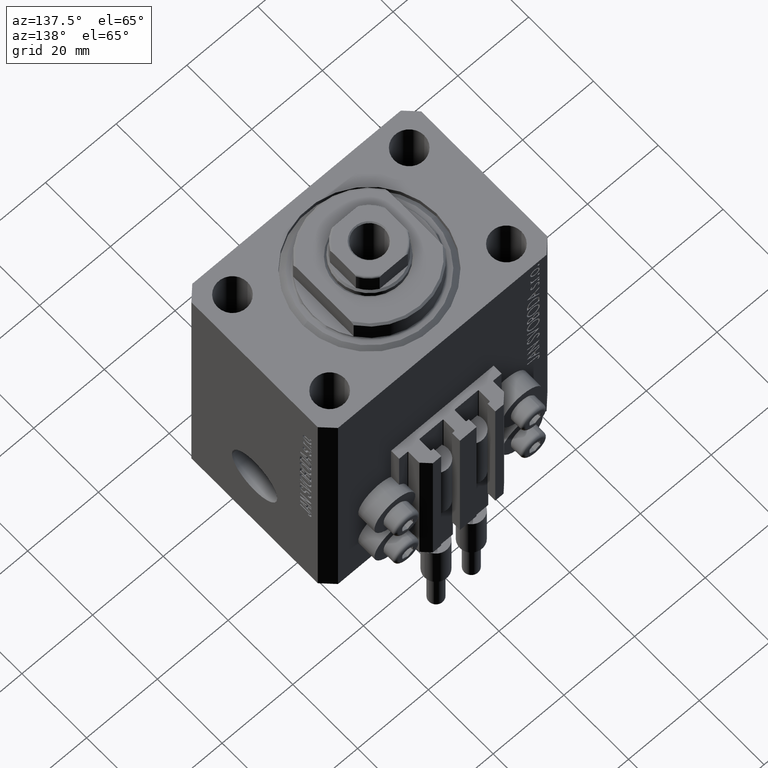
[diagram: clean part render]
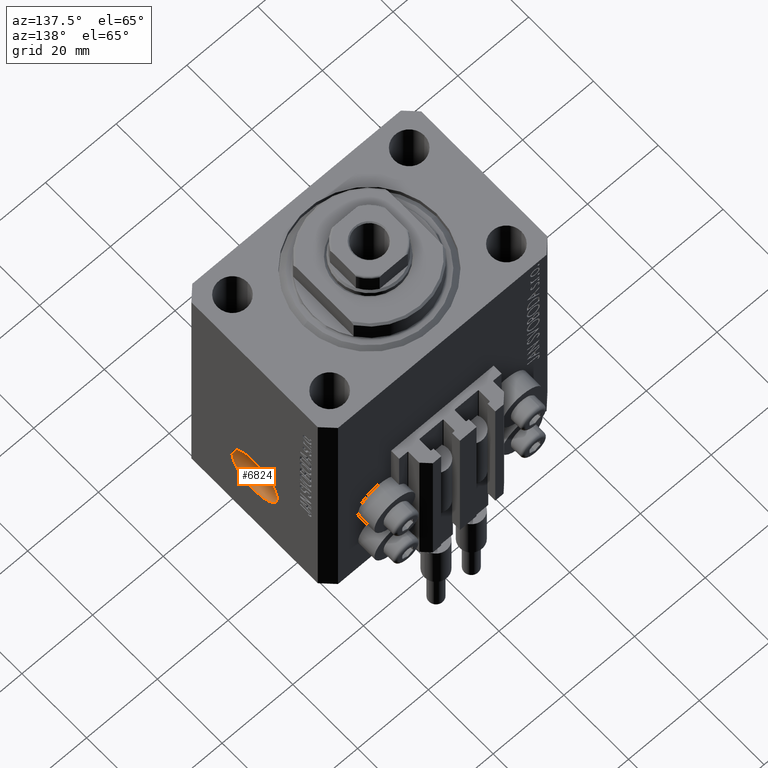
[diagram: same view with one face highlighted and labeled with its STEP entity id]
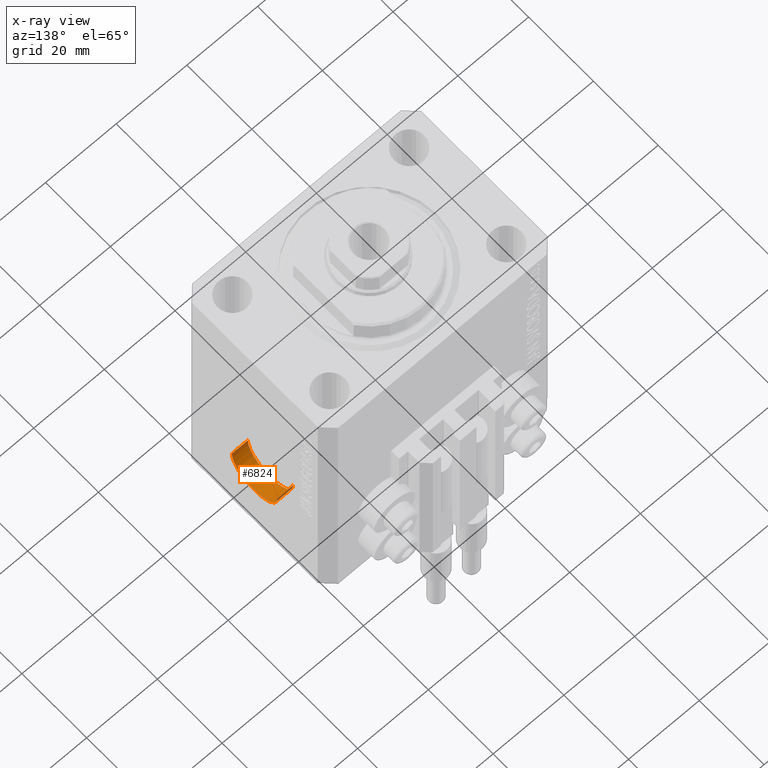
[diagram: x-ray of the same camera — body ghosted, the highlighted face saturated]
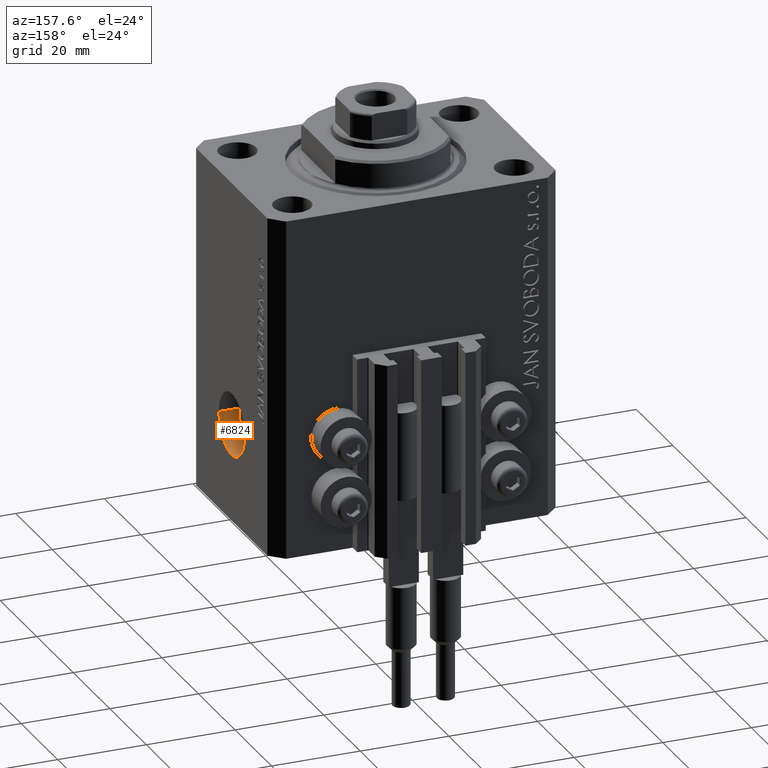
[diagram: same view with one face highlighted and labeled with its STEP entity id]
A machine part, auxiliary view. The second image highlights one B-rep face of the part: STEP entity #6824.
The next image is the same camera in x-ray: the body ghosted, the highlighted face saturated — about 0% of this face is hidden behind the body in this view.
A second angle (auxiliary view) of the same face is appended — the face is thin or edge-on in the first view.
In plain terms, the highlighted cylindrical surface (edge-blend (fillet) strip) has radius 7 mm, axis along (1, -0, 0).
Its self-contained STEP definition (entity closure, byte-faithful):
#1303 = LINE ( 'NONE', #16196, #12976 ) ;
#3651 = ORIENTED_EDGE ( 'NONE', *, *, #30468, .T. ) ;
#6824 = ADVANCED_FACE ( 'NONE', ( #17869 ), #9802, .F. ) ;
#8978 = VERTEX_POINT ( 'NONE', #17632 ) ;
#9182 = ORIENTED_EDGE ( 'NONE', *, *, #22880, .F. ) ;
#9327 = DIRECTION ( 'NONE',  ( 1.000000000000000000, -1.334402673828349134E-14, 0.000000000000000000 ) ) ;
#9334 = CIRCLE ( 'NONE', #35081, 7.000000000000000000 ) ;
#9430 = CARTESIAN_POINT ( 'NONE',  ( 27.99999999999686651, 7.000000000000042633, -55.00000000000000000 ) ) ;
#9802 = CYLINDRICAL_SURFACE ( 'NONE', #30935, 7.000000000000000000 ) ;
#10062 = CARTESIAN_POINT ( 'NONE',  ( 27.99999999999677414, 4.270088556253899177E-14, -55.00000000000000000 ) ) ;
#12976 = VECTOR ( 'NONE', #38403, 1000.000000000000000 ) ;
#14023 = ORIENTED_EDGE ( 'NONE', *, *, #38986, .F. ) ;
#16196 = CARTESIAN_POINT ( 'NONE',  ( 27.99999999999668177, -6.999999999999957367, -55.00000000000000000 ) ) ;
#17632 = CARTESIAN_POINT ( 'NONE',  ( 32.49999999999668177, -7.000000000000018652, -55.00000000000000000 ) ) ;
#17869 = FACE_OUTER_BOUND ( 'NONE', #40268, .T. ) ;
#18051 = ORIENTED_EDGE ( 'NONE', *, *, #30378, .T. ) ;
#21565 = AXIS2_PLACEMENT_3D ( 'NONE', #23759, #38634, #31541 ) ;
#22880 = EDGE_CURVE ( 'NONE', #24906, #42609, #9334, .T. ) ;
#23261 = CARTESIAN_POINT ( 'NONE',  ( 27.99999999999677414, 4.270088556253899177E-14, -55.00000000000000000 ) ) ;
#23759 = CARTESIAN_POINT ( 'NONE',  ( 32.49999999999677414, -1.734723475973671215E-14, -55.00000000000000000 ) ) ;
#24215 = DIRECTION ( 'NONE',  ( 1.338215252896394112E-14, 1.000000000000000000, 0.000000000000000000 ) ) ;
#24313 = DIRECTION ( 'NONE',  ( 1.000000000000000000, -1.334402673828348976E-14, -0.000000000000000000 ) ) ;
#24906 = VERTEX_POINT ( 'NONE', #32389 ) ;
#25433 = DIRECTION ( 'NONE',  ( 1.338215252896394112E-14, 1.000000000000000000, 0.000000000000000000 ) ) ;
#30378 = EDGE_CURVE ( 'NONE', #8978, #46514, #42599, .T. ) ;
#30468 = EDGE_CURVE ( 'NONE', #24906, #8978, #1303, .T. ) ;
#30935 = AXIS2_PLACEMENT_3D ( 'NONE', #10062, #39826, #25433 ) ;
#31151 = CARTESIAN_POINT ( 'NONE',  ( 32.49999999999686651, 6.999999999999983125, -55.00000000000000000 ) ) ;
#31541 = DIRECTION ( 'NONE',  ( 1.288651725011342390E-14, 1.000000000000000000, 0.000000000000000000 ) ) ;
#32389 = CARTESIAN_POINT ( 'NONE',  ( 27.99999999999668177, -6.999999999999957367, -55.00000000000000000 ) ) ;
#32676 = VECTOR ( 'NONE', #24313, 1000.000000000000000 ) ;
#35081 = AXIS2_PLACEMENT_3D ( 'NONE', #23261, #9327, #24215 ) ;
#37957 = CARTESIAN_POINT ( 'NONE',  ( 27.99999999999686651, 7.000000000000042633, -55.00000000000000000 ) ) ;
#38403 = DIRECTION ( 'NONE',  ( 1.000000000000000000, -1.334402673828348976E-14, -0.000000000000000000 ) ) ;
#38634 = DIRECTION ( 'NONE',  ( 1.000000000000000000, -1.334402673828349134E-14, 0.000000000000000000 ) ) ;
#38986 = EDGE_CURVE ( 'NONE', #42609, #46514, #42873, .T. ) ;
#39826 = DIRECTION ( 'NONE',  ( 1.000000000000000000, -1.334402673828348976E-14, -0.000000000000000000 ) ) ;
#40268 = EDGE_LOOP ( 'NONE', ( #9182, #3651, #18051, #14023 ) ) ;
#42599 = CIRCLE ( 'NONE', #21565, 7.000000000000000000 ) ;
#42609 = VERTEX_POINT ( 'NONE', #37957 ) ;
#42873 = LINE ( 'NONE', #9430, #32676 ) ;
#46514 = VERTEX_POINT ( 'NONE', #31151 ) ;